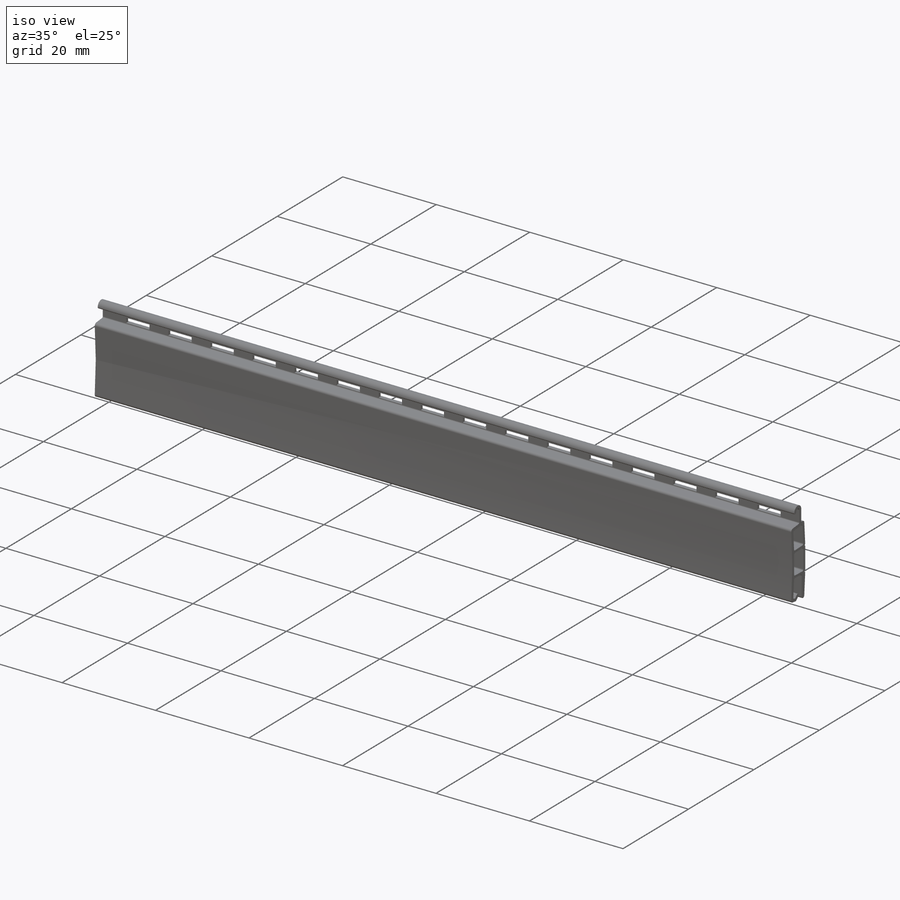
[diagram: iso view]
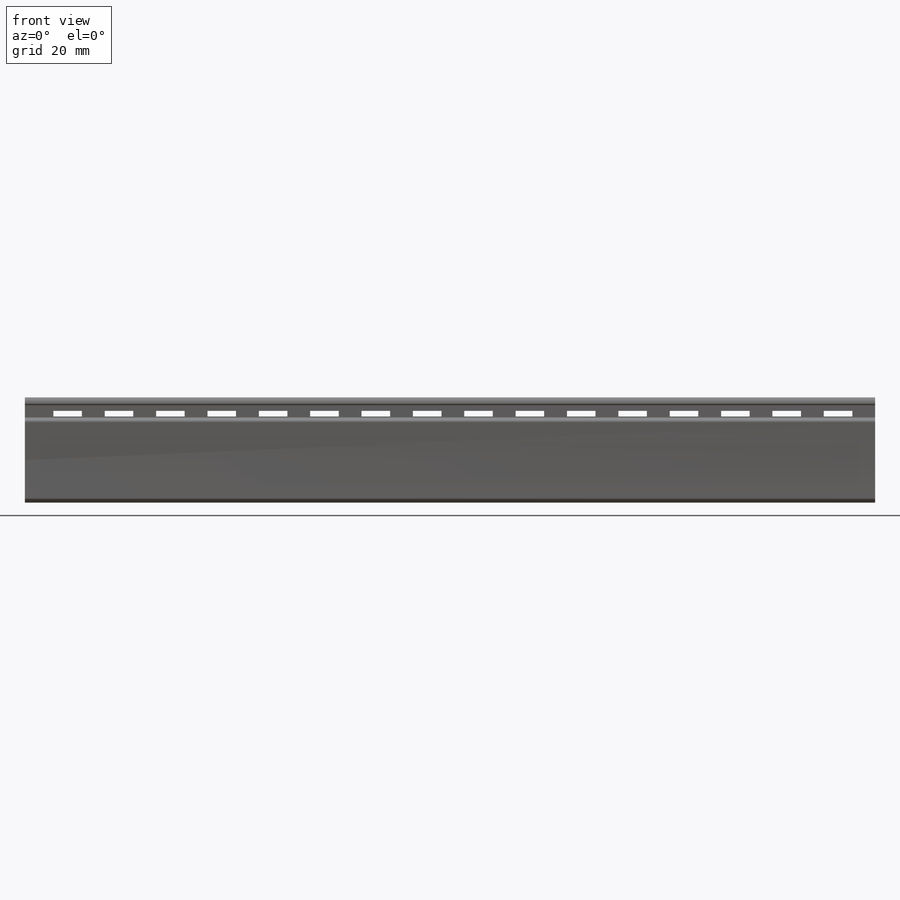
[diagram: front view]
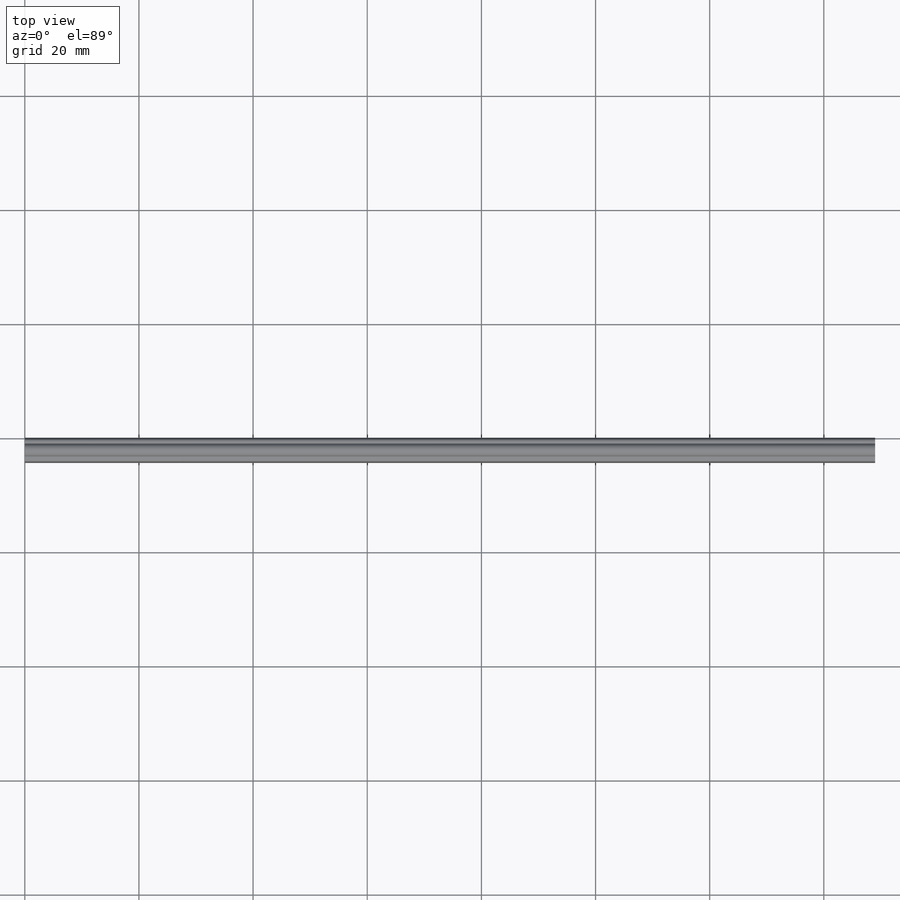
[diagram: top view]
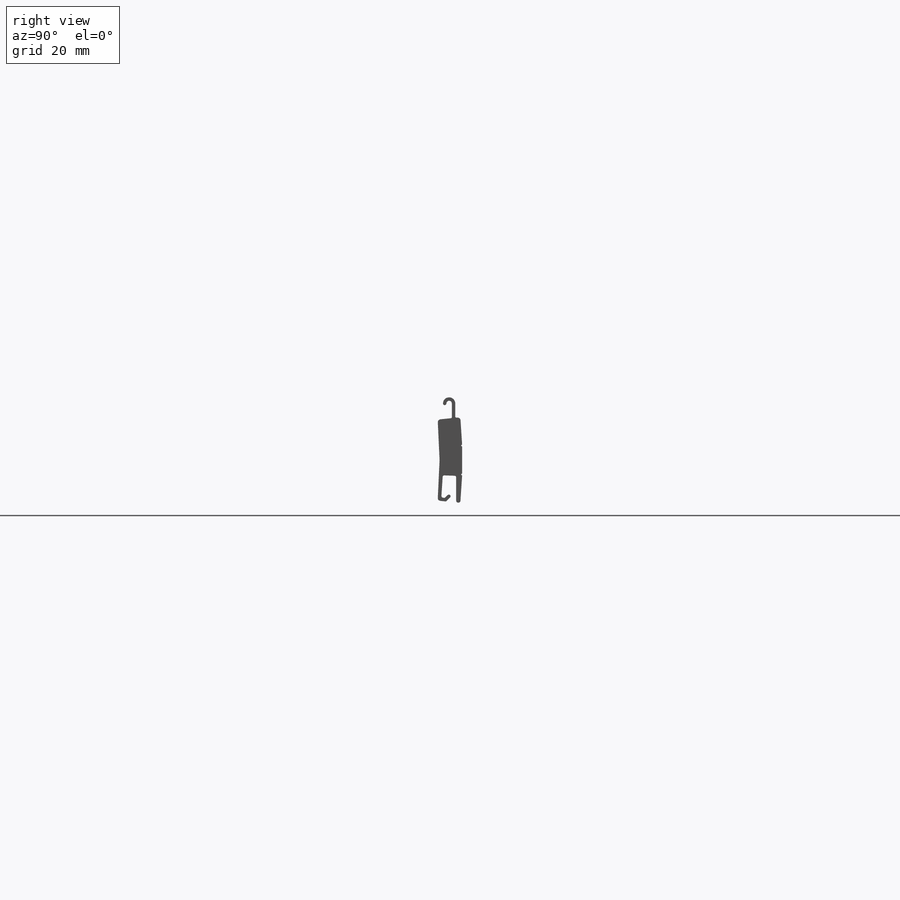
[diagram: right view]
SOLIDWORKS PART (.sldprt)
format: sldprt  version: not decoded by parser v0  size: 481,792 bytes
history: native  units: mm
features: plane x5, sketch x3, extrude x2, material x1, cut_extrude x1, mirror x1 (+8 scaffold rows collapsed)
feature tree (21):
  scaffold x8  (default folders/planes/origin — collapsed)
  material  "Matériau <non spécifié>"
  plane  "Plan de face"
  plane  "Plan de dessus"
  plane  "Plan de droite"
  sketch  "Esquisse1"  dims[c1.D4=90.0mm c1.D5=~83.100439mm c1.D9=0.5mm c1.D11=1.0mm c1.D12=0.3mm c1.D20=~0.40703mm c1.D21=0.2mm c1.D22=0.4mm c1.D23=0.4mm c2.D20=84.75mm c2.D3=0.2mm c3.D20=0.2mm c3.D4=~72.229379mm c3.D8=0.3mm c3.D9=0.1mm c3.D3=~0.538682mm c3.D12=0.3mm c3.D15=0.5mm c3.D16=0.2mm c3.D17=0.2mm c3.D23=0.3mm c3.D24=~74.821211mm c3.D1=15.0mm c3.D2=7.5mm c4.D3=85.0mm c4.D4=~93.310783mm c5.D4=2.5deg c5.D5=0.25mm c5.D6=0.5mm c5.D7=0.25mm c6.D5=0.25mm c6.D8=0.5mm c6.D10=1.1mm c6.D13=0.45mm c6.D14=0.05mm c6.D15=~7.305805mm c7.D15=~179.538321deg c8.D15=0.45mm c8.D16=~7.334412mm c9.D16=90.0deg c9.D17=0.05mm c9.D18=0.45mm c9.D19=3.5mm c9.D20=3.0mm c9.D21=0.2mm c10.D16=0.7mm c10.D24=0.2mm c10.D20=~0.491933mm c11.D20=90.0deg c11.D25=~0.574591mm c12.D25=45.0deg c12.D20=~0.392173mm c13.D20=90.0deg c13.D26=~0.46508mm c14.D26=45.0deg c14.D10=0.225mm c14.D1=15.0mm c14.D2=7.5mm c14.D3=75.0mm c14.D4=0.5mm c14.D5=0.25mm c14.D6=0.5mm c15.D4=~74.624058mm c16.D4=~11.478341deg c17.D4=75.0mm c18.D4=3.8deg c18.D5=~74.624058mm c19.D5=~11.478341deg c19.D4=75.0mm c20.D4=3.8deg c20.D5=0.5mm c20.D6=~7.327301mm c21.D6=0.1392deg c22.D6=0.25mm c22.D7=0.6mm c22.D3=0.15mm c22.D9=0.6mm c22.D10=0.6mm c22.D11=0.15mm c22.D13=3.5mm c22.D14=0.3mm c22.D18=~0.698458mm c23.D18=45.0deg c23.D19=1.5mm c23.D20=0.6mm c23.D21=0.3mm c23.D22=0.9mm c23.D24=~0.85533mm c24.D24=45.0deg c24.D25=~0.583998mm c25.D25=90.0deg]
  extrude  "Boss.-Extru.1"  Depth=149mm
  sketch  "Esquisse2"  dims[D1=5.0mm D2=5.0mm D3=1.0mm]
  cut_extrude  "Enlèv. mat.-Extru.1"  Depth=10mm
  plane  "Plan1"  Offset=74.5mm
  plane  "Plan2"  Offset=3mm
  sketch  "Esquisse3"
  extrude  "Boss.-Extru.2"  Depth=0.8mm
  mirror  "Symétrie1"
decode coverage: 5 of 7 modeling features carry decoded parameters
note: ~ marks probable driven/reference dimensions
note: suppression state not decoded; provenance and decode notes live in map.json
